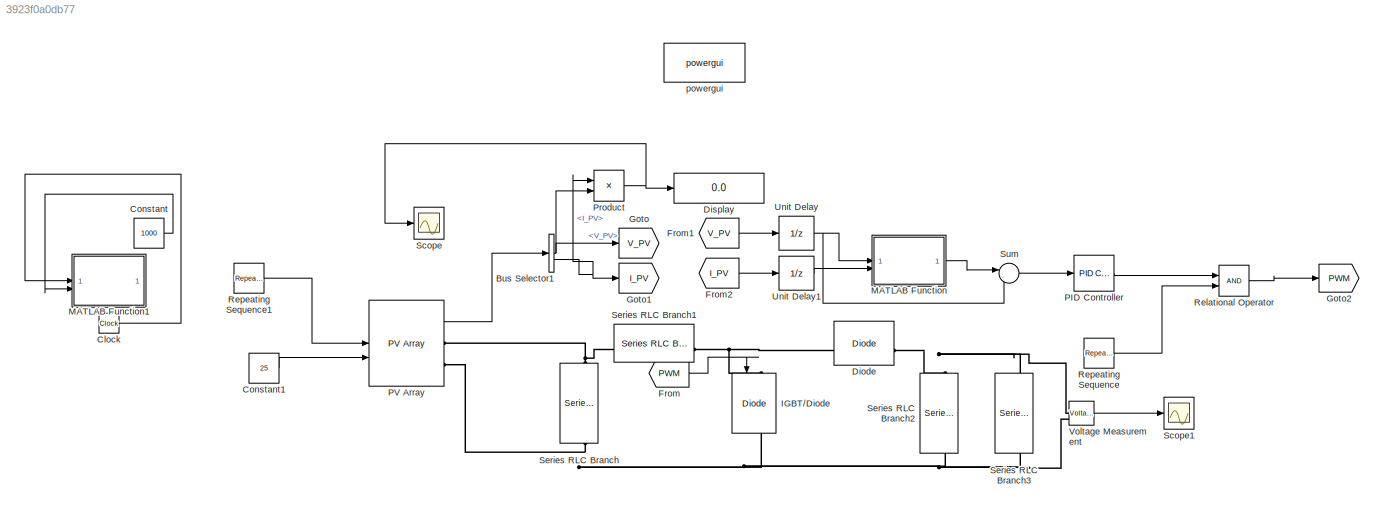
MODEL slx_3923f0a0db77
KIND model
CONFIG AbsTol = auto
CONFIG EnableMultiTasking = off
CONFIG FixedStep = auto
CONFIG MaxStep = auto
CONFIG MinStep = auto
CONFIG RelTol = 1e-3
CONFIG SampleTimeConstraint = Unconstrained
CONFIG SolverName = VariableStepAuto
CONFIG StartTime = 0.0
CONFIG StopTime = 5
BLOCK [BusSelector] Bus Selector1
  OutputSignals = V_PV,I_PV
BLOCK [Clock] Clock
BLOCK [Constant] Constant
  Value = 1000
BLOCK [Constant] Constant1
  Value = 25
BLOCK [Reference] Diode  REF=spsDiodeLib/Diode
  LibrarySourceBlock = sps_lib/Power Electronics/Diode
  SourceBlock = spsDiodeLib/Diode
  SourceType = Diode
BLOCK [Display] Display
  Decimation = 1
BLOCK [From] From
  GotoTag = PWM
BLOCK [From] From1
  GotoTag = V_PV
BLOCK [From] From2
  GotoTag = I_PV
BLOCK [Goto] Goto
  GotoTag = V_PV
BLOCK [Goto] Goto1
  GotoTag = I_PV
BLOCK [Goto] Goto2
  GotoTag = PWM
BLOCK [Reference] IGBT//Diode  REF=spsIGBTDiodeLib/IGBT//Diode
  LibrarySourceBlock = sps_lib/Power Electronics/IGBT//Diode
  NameLocation = left
  SourceBlock = spsIGBTDiodeLib/IGBT//Diode
  SourceType = IGBT/Diode
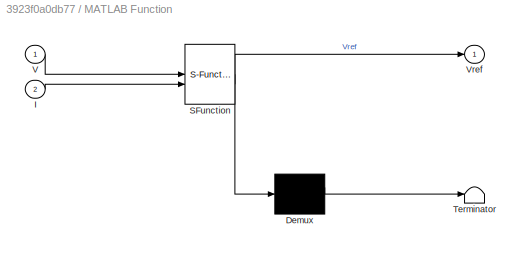
BLOCK [SubSystem] MATLAB Function
  ErrorFcn = Stateflow.Translate.translate
  PermitHierarchicalResolution = ExplicitOnly
  SFBlockType = MATLAB Function
  TreatAsAtomicUnit = on
BLOCK [Demux] MATLAB Function/ Demux 
  Outputs = 1
BLOCK [S-Function] MATLAB Function/ SFunction 
  EnableBusSupport = on
  FunctionName = sf_sfun
  PortCounts = [2 2]
  SFcnIsStateOwnerBlock = off
  SFunctionDeploymentMode = off
  Tag = Stateflow S-Function 2
BLOCK [Terminator] MATLAB Function/ Terminator 
BLOCK [Inport] MATLAB Function/I
  Port = 2
BLOCK [Inport] MATLAB Function/V
BLOCK [Outport] MATLAB Function/Vref
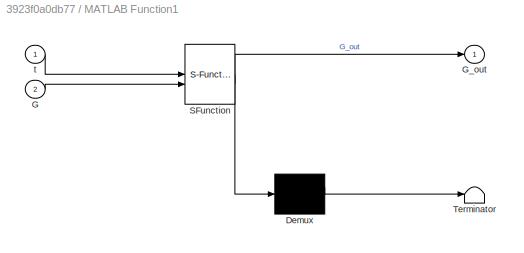
BLOCK [SubSystem] MATLAB Function1
  ErrorFcn = Stateflow.Translate.translate
  PermitHierarchicalResolution = ExplicitOnly
  SFBlockType = MATLAB Function
  TreatAsAtomicUnit = on
BLOCK [Demux] MATLAB Function1/ Demux 
  Outputs = 1
BLOCK [S-Function] MATLAB Function1/ SFunction 
  EnableBusSupport = on
  FunctionName = sf_sfun
  PortCounts = [2 2]
  SFcnIsStateOwnerBlock = off
  SFunctionDeploymentMode = off
  Tag = Stateflow S-Function 1
BLOCK [Terminator] MATLAB Function1/ Terminator 
BLOCK [Inport] MATLAB Function1/G
  Port = 2
BLOCK [Outport] MATLAB Function1/G_out
BLOCK [Inport] MATLAB Function1/t
BLOCK [Reference] PID Controller  REF=slpidlib/PID Controller
  LibrarySourceBlock = simulink/Continuous/PID Controller
  SourceBlock = slpidlib/PID Controller
  SourceType = PID 1dof
BLOCK [Reference] PV Array  REF=spsPVArrayLib/PV Array
  LibrarySourceBlock = sps_lib/Sources/PV Array
  SourceBlock = spsPVArrayLib/PV Array
  SourceType = PV array
BLOCK [Product] Product
BLOCK [RelationalOperator] Relational Operator
  InputSameDT = off
  OutDataTypeStr = boolean
  RndMeth = Simplest
BLOCK [Reference] Repeating Sequence  REF=simulink/Sources/Repeating
Sequence
  SourceBlock = simulink/Sources/Repeating\nSequence
  SourceType = Repeating table
BLOCK [Reference] Repeating Sequence1  REF=simulink/Sources/Repeating
Sequence
  SourceBlock = simulink/Sources/Repeating\nSequence
  SourceType = Repeating table
BLOCK [Scope] Scope
  Floating = off
  NumInputPorts = 1
  ScopeSpecificationString = Simulink.scopes.TimeScopeBlockCfg('CurrentConfiguration', extmgr.ConfigurationSet(extmgr.Configuration('Core','General UI',true),extmgr.Configuration('Core','Source UI',true),extmgr.Configuration('Sources','WiredSimulink',true),extmgr.Configuration('Visuals','Time Domain',true,'SerializedDisplays',{struct('MinYLimReal','-15473.64642','MaxYLimReal','139276.48197','YLabelReal','','MinYLimMag','   0....<+1390ch>
BLOCK [Scope] Scope1
  Floating = off
  NumInputPorts = 1
  ScopeSpecificationString = Simulink.scopes.TimeScopeBlockCfg('CurrentConfiguration', extmgr.ConfigurationSet(extmgr.Configuration('Core','General UI',true),extmgr.Configuration('Core','Source UI',true),extmgr.Configuration('Sources','WiredSimulink',true,'DataLoggingVariableName','ScopeData1'),extmgr.Configuration('Visuals','Time Domain',true,'SerializedDisplays',{struct('MinYLimReal','-63.52919','MaxYLimReal','571.76268','Y...<+1488ch>
BLOCK [Reference] Series RLC Branch  REF=spsSeriesRLCBranchLib/Series RLC Branch
  LibrarySourceBlock = sps_lib/Passives/Series RLC Branch
  NameLocation = left
  SourceBlock = spsSeriesRLCBranchLib/Series RLC Branch
  SourceType = Series RLC Branch
BLOCK [Reference] Series RLC Branch1  REF=spsSeriesRLCBranchLib/Series RLC Branch
  LibrarySourceBlock = sps_lib/Passives/Series RLC Branch
  NameLocation = top
  SourceBlock = spsSeriesRLCBranchLib/Series RLC Branch
  SourceType = Series RLC Branch
BLOCK [Reference] Series RLC Branch2  REF=spsSeriesRLCBranchLib/Series RLC Branch
  LibrarySourceBlock = sps_lib/Passives/Series RLC Branch
  NameLocation = right
  SourceBlock = spsSeriesRLCBranchLib/Series RLC Branch
  SourceType = Series RLC Branch
BLOCK [Reference] Series RLC Branch3  REF=spsSeriesRLCBranchLib/Series RLC Branch
  LibrarySourceBlock = sps_lib/Passives/Series RLC Branch
  NameLocation = right
  SourceBlock = spsSeriesRLCBranchLib/Series RLC Branch
  SourceType = Series RLC Branch
BLOCK [Sum] Sum
  Inputs = |-+
BLOCK [UnitDelay] Unit Delay
  HasFrameUpgradeWarning = on
  SampleTime = 1e-4
BLOCK [UnitDelay] Unit Delay1
  HasFrameUpgradeWarning = on
  SampleTime = 1e-4
BLOCK [Reference] Voltage Measurement  REF=spsVoltageMeasurementLib/Voltage Measurement
  LibrarySourceBlock = sps_lib/Sensors and Measurements/Voltage Measurement
  SourceBlock = spsVoltageMeasurementLib/Voltage Measurement
  SourceType = Voltage Measurement
  UserDataPersistent = on
BLOCK [Reference] powergui  REF=spspowerguiLib/powergui
  LibrarySourceBlock = sps_lib/powergui
  Priority = 1
  SourceBlock = spspowerguiLib/powergui
  SourceType = PSB option menu block
NET Bus Selector1:1 -> Goto:1, Product:2
NET Bus Selector1:2 -> Goto1:1, Product:1
LINE Clock:1 -> MATLAB Function1:1
LINE Constant1:1 -> PV Array:2
LINE Constant:1 -> MATLAB Function1:2
LINE From1:1 -> Unit Delay:1
LINE From2:1 -> Unit Delay1:1
LINE From:1 -> IGBT//Diode:1
LINE MATLAB Function:1 -> Sum:1
LINE PID Controller:1 -> Relational Operator:1
LINE PV Array:1 -> Bus Selector1:1
NET Product:1 -> Display:1, Scope:1
LINE Relational Operator:1 -> Goto2:1
LINE Repeating Sequence1:1 -> PV Array:1
LINE Repeating Sequence:1 -> Relational Operator:2
LINE Sum:1 -> PID Controller:1
LINE Unit Delay1:1 -> MATLAB Function:2
NET Unit Delay:1 -> MATLAB Function:1, Sum:2
LINE Voltage Measurement:1 -> Scope1:1
PNET net1: Diode:LConn1 -- IGBT//Diode:LConn1 -- Series RLC Branch1:LConn1
PNET net2: Diode:RConn1 -- Series RLC Branch2:RConn1 -- Series RLC Branch3:RConn1 -- Voltage Measurement:LConn1
PNET net3: IGBT//Diode:RConn1 -- PV Array:RConn2 -- Series RLC Branch2:LConn1 -- Series RLC Branch3:LConn1 -- Series RLC Branch:RConn1 -- Voltage Measurement:LConn2
PNET net4: PV Array:RConn1 -- Series RLC Branch1:RConn1 -- Series RLC Branch:LConn1
note: NET lines group one-source signal fan-out (src -> all destinations, sorted); 1:1 wires keep LINE; PNET lines group multi-terminal physical nets as a canonical sorted terminal list (undirected conserving connections); 2-terminal nets keep the pairwise PLINE form
CHART MATLAB Function states=1 transitions=1
  STATE_LABEL 'eML_blk_kernel()'
  STATE_LABEL "SCRIPT:\nfunction Vref = refGen(V,I)\n\nVrefmax=363;\nVrefmin=0;\nVrefinit=300;\ndeltaVref=1;\npersistent Vold Pold Vrefold;\n\ndatatype = 'double';\n\nif isempty(Vold)\n    Vold=0\n    Pold=0\n    Vrefold=Vrefinit\nend\n\nP = V*I;\ndV=V-Vold;\ndP=P-Pold;\n\nif dP ~= 0\n    if dP<0\n        if dV<0\n            Vref=Vrefold+deltaVref;\n        else\n            Vref=Vrefold-deltaVref;\n        end\n    else\n        if dV<0\n ...<+225ch>"
CHART MATLAB Function1 states=1 transitions=1
  STATE_LABEL 'eML_blk_kernel()'
  STATE_LABEL 'SCRIPT:\nfunction G_out = func(t, G)\n    if t > 0.1 && t <= 0.2\n        G_out = 800;\n    elseif t > 0 && t <= 0.1\n        G_out = 1000;\n    elseif t > 0.2 && t <= 0.3\n        G_out = 1200;\n    elseif t > 0.4 && t <= 0.5\n        G_out = 1100;\n    else\n        G_out = G;\n    end\nend'
CHART  states=0 transitions=0
CHART  states=0 transitions=0
